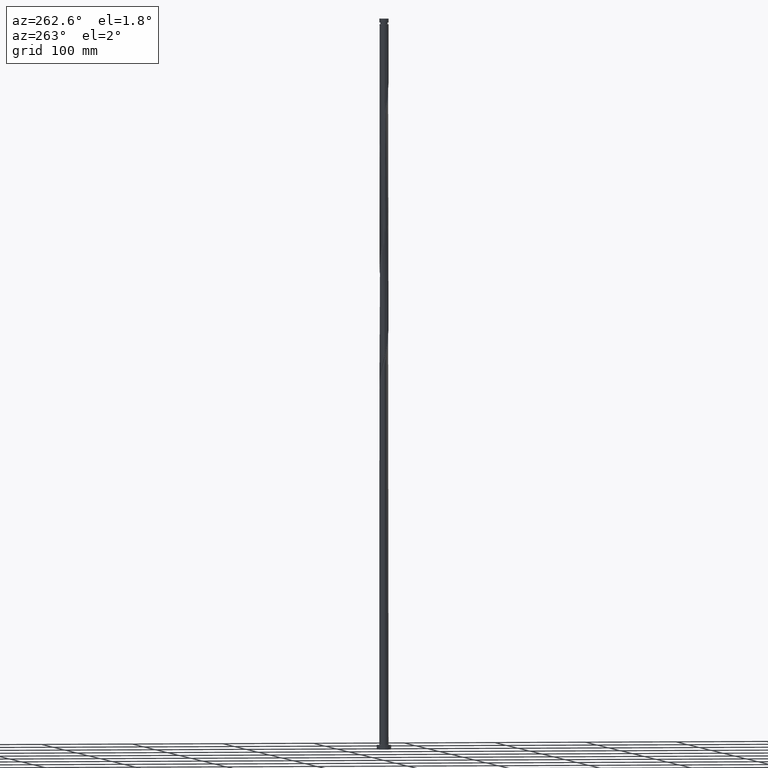
[diagram: clean part render]
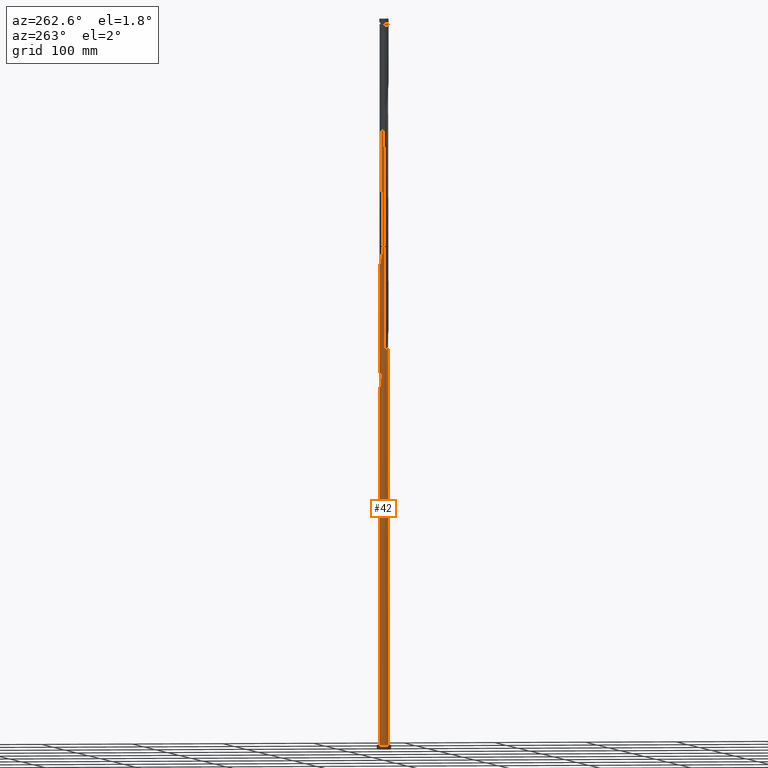
[diagram: same view with one face highlighted and labeled with its STEP entity id]
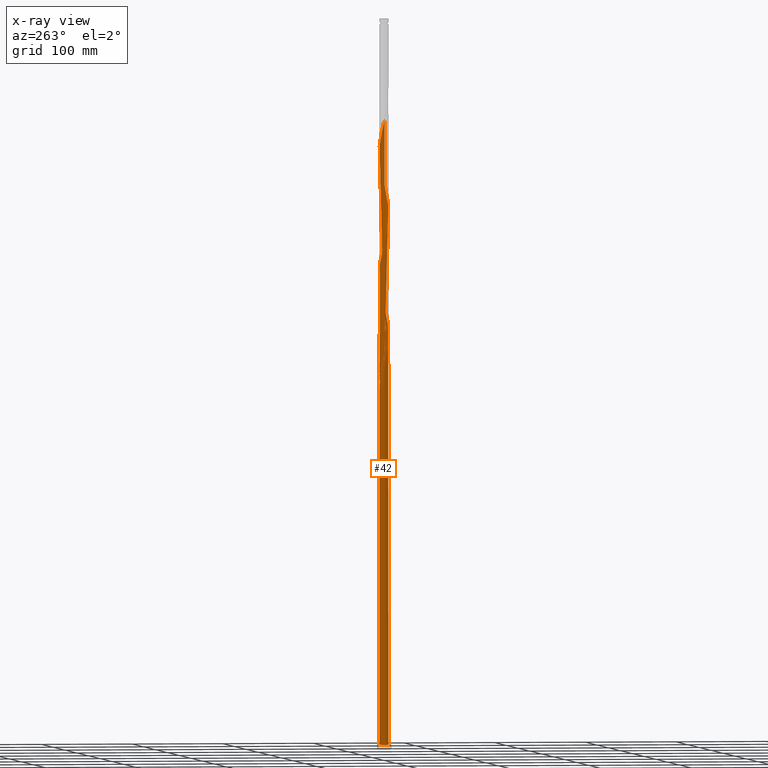
[diagram: x-ray of the same camera — body ghosted, the highlighted face saturated]
A machine part, auxiliary view. The second image highlights one B-rep face of the part: STEP entity #42.
The next image is the same camera in x-ray: the body ghosted, the highlighted face saturated — about 0% of this face is hidden behind the body in this view.
In plain terms, the highlighted cylindrical surface (bore or boss wall) has radius 5 mm, axis along (-0, -0, -1).
Its self-contained STEP definition (entity closure, byte-faithful):
#2 = CARTESIAN_POINT ( 'NONE',  ( -4.064598413571491875, 2.941206217551776803, 676.3177705055865090 ) ) ;
#15 = CARTESIAN_POINT ( 'NONE',  ( 4.493269221328096030, -2.232081087783042150, 613.1598757687444277 ) ) ;
#20 = DIRECTION ( 'NONE',  ( -0.000000000000000000, -0.000000000000000000, -1.000000000000000000 ) ) ;
#42 = ADVANCED_FACE ( 'NONE', ( #226 ), #822, .T. ) ;
#46 = CARTESIAN_POINT ( 'NONE',  ( -1.457076892166166537, -4.782983057707340890, 450.0019810319022326 ) ) ;
#58 = CARTESIAN_POINT ( 'NONE',  ( -3.266812383747513149, 3.807832864920276172, 413.1598757687442003 ) ) ;
#59 = CARTESIAN_POINT ( 'NONE',  ( -4.965429427042146848, -0.5869502577424865475, 425.4405775231303437 ) ) ;
#71 = CARTESIAN_POINT ( 'NONE',  ( -4.087607399536869579, -2.879490536058679329, 435.9668933126040429 ) ) ;
#82 = VERTEX_POINT ( 'NONE', #686 ) ;
#112 = CARTESIAN_POINT ( 'NONE',  ( -4.505806327405627698, -2.167419973127375776, 565.7914547161127530 ) ) ;
#121 = CARTESIAN_POINT ( 'NONE',  ( -4.087607399536869579, -2.879490536058679329, 569.3002266459375278 ) ) ;
#131 = CARTESIAN_POINT ( 'NONE',  ( 4.685403866801941319, 1.794058216092929703, 497.3704020845339073 ) ) ;
#133 = CARTESIAN_POINT ( 'NONE',  ( 0.9949874371066294021, 4.899999999999997691, 393.8616301547091894 ) ) ;
#144 = CARTESIAN_POINT ( 'NONE',  ( 3.557909197405970669, 3.513016103437909265, 506.1423319090952191 ) ) ;
#145 = CARTESIAN_POINT ( 'NONE',  ( -3.525055956709932659, 3.570102908858082458, 406.1423319090952759 ) ) ;
#152 = CARTESIAN_POINT ( 'NONE',  ( 4.916793342044518234, 0.9983974706497554807, 493.8616301547093599 ) ) ;
#162 = CARTESIAN_POINT ( 'NONE',  ( -0.1749036129582282328, 4.996939936218388389, 657.0195248915514412 ) ) ;
#163 = CARTESIAN_POINT ( 'NONE',  ( -4.916793342044511128, 0.9983974706497559248, 427.1949634880425606 ) ) ;
#174 = CARTESIAN_POINT ( 'NONE',  ( -4.994316278799820985, 0.2383378008524587588, 688.5984722599723682 ) ) ;
#175 = CARTESIAN_POINT ( 'NONE',  ( -4.326208788009311412, 2.540781730161816743, 420.1774196283934089 ) ) ;
#186 = CARTESIAN_POINT ( 'NONE',  ( 4.974567045559865619, -0.6521786465401347987, 620.1774196283931815 ) ) ;
#196 = CARTESIAN_POINT ( 'NONE',  ( 0.6499511258119766710, 4.957576377026966519, 653.5107529617268938 ) ) ;
#200 = LINE ( 'NONE', #367, #1232 ) ;
#226 = FACE_OUTER_BOUND ( 'NONE', #1926, .T. ) ;
#249 = CARTESIAN_POINT ( 'NONE',  ( 0.1749036129582310639, -4.996939936218388389, 457.0195248915513844 ) ) ;
#284 = CARTESIAN_POINT ( 'NONE',  ( 3.266812383747518922, 3.807832864920280169, 507.8967178740074360 ) ) ;
#294 = CARTESIAN_POINT ( 'NONE',  ( -3.207207559597160973, 3.835859704116263202, 537.7212792775163734 ) ) ;
#304 = CARTESIAN_POINT ( 'NONE',  ( -2.224457399218039200, -4.477922428879735683, 579.8265424354110564 ) ) ;
#313 = CARTESIAN_POINT ( 'NONE',  ( -0.2391546351814093085, -5.011432862789283682, 588.5984722599723682 ) ) ;
#321 = CARTESIAN_POINT ( 'NONE',  ( 1.060747616442545560, 4.903719891264649355, 518.4230336634813057 ) ) ;
#330 = CARTESIAN_POINT ( 'NONE',  ( -3.525055956709932659, 3.570102908858082458, 672.8089985757618479 ) ) ;
#339 = VECTOR ( 'NONE', #565, 1000.000000000000000 ) ;
#341 = CARTESIAN_POINT ( 'NONE',  ( -4.493269221328096918, 2.232081087783041262, 679.8265424354108291 ) ) ;
#343 = CARTESIAN_POINT ( 'NONE',  ( -4.685403866801933326, 1.794058216092931701, 423.6861915582181268 ) ) ;
#353 = CARTESIAN_POINT ( 'NONE',  ( -3.207207559597160973, 3.835859704116263202, 671.0546126108497447 ) ) ;
#364 = CARTESIAN_POINT ( 'NONE',  ( 0.000000000000000000, 0.000000000000000000, 5.000000000000000000 ) ) ;
#366 = CARTESIAN_POINT ( 'NONE',  ( -3.557909197405964008, 3.513016103437906157, 414.9142617336564740 ) ) ;
#367 = CARTESIAN_POINT ( 'NONE',  ( -5.000000000000000000, 0.000000000000000000, 800.0000000000000000 ) ) ;
#375 = CARTESIAN_POINT ( 'NONE',  ( 1.401013013115385064, -4.817552990352517384, 595.6160161196215768 ) ) ;
#387 = CARTESIAN_POINT ( 'NONE',  ( -1.853406167889788181, -4.662246224150030649, 448.2475950669899589 ) ) ;
#405 =( BOUNDED_CURVE ( )  B_SPLINE_CURVE ( 2, ( #2233, #1214, #1591, #163, #1196, #343, #1028, #175, #1915, #856, #366, #58, #410, #1794, #1447, #2156, #2110, #1603, #1274, #1109, #556, #937, #1288 ),
 .UNSPECIFIED., .F., .T. ) 
 B_SPLINE_CURVE_WITH_KNOTS ( ( 3, 2, 2, 2, 2, 2, 2, 2, 2, 2, 2, 3 ),
 ( 0.9295295809515958796, 0.9342105263157894912, 0.9407894736842105088, 0.9473684210526315264, 0.9539473684210526550, 0.9605263157894736725, 0.9671052631578946901, 0.9736842105263158187, 0.9802631578947368363, 0.9868421052631578538, 0.9934210526315789824, 1.000000000000000000 ),
 .UNSPECIFIED. ) 
 CURVE ( )  GEOMETRIC_REPRESENTATION_ITEM ( )  RATIONAL_B_SPLINE_CURVE ( ( 0.9078162034606489517, 0.9068816855934562771, 0.9090909090909780055, 0.9059859027334048465, 0.9090909090909780055, 0.9059859027334048465, 0.9090909090909780055, 0.9059859027334048465, 0.9090909090909780055, 0.9059859027334048465, 0.9090909090909780055, 0.9059859027334048465, 0.9090909090909780055, 0.9059859027334048465, 0.9090909090909780055, 0.9059859027334048465, 0.9090909090909780055, 0.9059859027334048465, 0.9090909090909780055, 0.9059859027334048465, 0.9090909090909780055, 0.9059859027334048465, 0.9090909090909780055 ) ) 
 REPRESENTATION_ITEM ( '' )  );
#410 = CARTESIAN_POINT ( 'NONE',  ( -2.931160507146898020, 4.050715749264855781, 411.4054898038320403 ) ) ;
#412 = CARTESIAN_POINT ( 'NONE',  ( -3.266812383747517590, -3.807832864920281057, 441.2300512073408072 ) ) ;
#420 = ORIENTED_EDGE ( 'NONE', *, *, #2078, .F. ) ;
#433 = CARTESIAN_POINT ( 'NONE',  ( -4.685403866801940431, -1.794058216092932145, 430.7037354178671080 ) ) ;
#443 = CARTESIAN_POINT ( 'NONE',  ( -4.965429427042146848, -0.5869502577424865475, 558.7739108564638855 ) ) ;
#446 = EDGE_CURVE ( 'NONE', #82, #1263, #405, .T. ) ;
#456 = CARTESIAN_POINT ( 'NONE',  ( 4.493269221328096030, -2.232081087783042150, 479.8265424354109427 ) ) ;
#465 = CARTESIAN_POINT ( 'NONE',  ( -4.974567045559865619, 0.6521786465401341326, 553.5107529617267801 ) ) ;
#477 = CARTESIAN_POINT ( 'NONE',  ( 2.224457399218039644, 4.477922428879734795, 513.1598757687444277 ) ) ;
#478 = CARTESIAN_POINT ( 'NONE',  ( 0.000000000000000000, 0.000000000000000000, 800.0000000000000000 ) ) ;
#479 = CARTESIAN_POINT ( 'NONE',  ( -5.000000000000008882, 0.1192366712258332434, 422.4367082688136747 ) ) ;
#486 = CARTESIAN_POINT ( 'NONE',  ( -4.064598413571491875, 2.941206217551776803, 542.9844371722531378 ) ) ;
#495 = CARTESIAN_POINT ( 'NONE',  ( 0.2391546351814078653, 5.011432862789283682, 655.2651389266391107 ) ) ;
#506 = CARTESIAN_POINT ( 'NONE',  ( 2.931160507146906902, 4.050715749264860222, 642.9844371722531378 ) ) ;
#520 = CARTESIAN_POINT ( 'NONE',  ( -2.174848182303464661, 4.521248683904087073, 665.7914547161129803 ) ) ;
#528 = AXIS2_PLACEMENT_3D ( 'NONE', #1389, #2112, #1237 ) ;
#530 = CARTESIAN_POINT ( 'NONE',  ( 4.064598413571491875, -2.941206217551778135, 609.6511038389197665 ) ) ;
#542 = CARTESIAN_POINT ( 'NONE',  ( 2.174848182303464217, -4.521248683904087962, 599.1247880494462379 ) ) ;
#556 = CARTESIAN_POINT ( 'NONE',  ( 0.1749036129582320631, 4.996939936218380396, 397.3704020845336231 ) ) ;
#558 = CARTESIAN_POINT ( 'NONE',  ( -2.224457399218039200, -4.477922428879735683, 446.4932091020777420 ) ) ;
#565 = DIRECTION ( 'NONE',  ( -0.000000000000000000, -0.000000000000000000, -1.000000000000000000 ) ) ;
#568 = CIRCLE ( 'NONE', #1836, 5.000000000000000000 ) ;
#570 = CARTESIAN_POINT ( 'NONE',  ( 1.787930597709425529, -4.669400837128304005, 464.0370687512004793 ) ) ;
#617 = CARTESIAN_POINT ( 'NONE',  ( 4.974567045559865619, -0.6521786465401347987, 486.8440862950601513 ) ) ;
#628 = CARTESIAN_POINT ( 'NONE',  ( 5.014065512039775463, 0.1755030448352140060, 490.3528582248846419 ) ) ;
#630 = CARTESIAN_POINT ( 'NONE',  ( -2.532103672393926530, 4.311432591639264622, 400.8791740143583411 ) ) ;
#636 = CARTESIAN_POINT ( 'NONE',  ( -3.266812383747517590, -3.807832864920281057, 574.5633845406740647 ) ) ;
#638 = CARTESIAN_POINT ( 'NONE',  ( -4.064598413571491875, 2.941206217551776803, 409.6511038389197097 ) ) ;
#646 = CARTESIAN_POINT ( 'NONE',  ( -3.794827185140713599, 3.255654563204930074, 541.2300512073409209 ) ) ;
#648 = CARTESIAN_POINT ( 'NONE',  ( -4.278933817449796173, 2.586643652667409921, 411.4054898038320971 ) ) ;
#655 = CARTESIAN_POINT ( 'NONE',  ( 4.646322289566819030, -1.847075846161879698, 481.5809284003232733 ) ) ;
#662 = CARTESIAN_POINT ( 'NONE',  ( 4.886971201682704269, -1.057124625540427409, 618.4230336634811920 ) ) ;
#664 = CARTESIAN_POINT ( 'NONE',  ( -4.646322289566819030, 1.847075846161879698, 414.9142617336565877 ) ) ;
#675 = CARTESIAN_POINT ( 'NONE',  ( 1.853406167889788625, 4.662246224150031537, 648.2475950669900158 ) ) ;
#676 = ORIENTED_EDGE ( 'NONE', *, *, #1380, .F. ) ;
#685 = CARTESIAN_POINT ( 'NONE',  ( -0.5889618610978689661, 4.982447009647494873, 658.7739108564635444 ) ) ;
#686 = CARTESIAN_POINT ( 'NONE',  ( -5.000000000000000000, 3.911322689939121366E-15, 431.4468956888313187 ) ) ;
#696 = CARTESIAN_POINT ( 'NONE',  ( 0.9949874371066286249, -4.900000000000006573, 593.8616301547092462 ) ) ;
#698 = CARTESIAN_POINT ( 'NONE',  ( 5.000000000000000000, 0.000000000000000000, 5.000000000000000000 ) ) ;
#706 = CARTESIAN_POINT ( 'NONE',  ( 4.087607399536869579, 2.879490536058681105, 635.9668933126040429 ) ) ;
#708 = VERTEX_POINT ( 'NONE', #1859 ) ;
#718 = LINE ( 'NONE', #767, #339 ) ;
#734 = CARTESIAN_POINT ( 'NONE',  ( 2.532103672393926530, -4.311432591639265510, 467.5458406810251404 ) ) ;
#747 = CARTESIAN_POINT ( 'NONE',  ( -3.849006011064423305, -3.218199341955540138, 437.7212792775162598 ) ) ;
#757 = CARTESIAN_POINT ( 'NONE',  ( 0.5889618610978697433, -4.982447009647494873, 458.7739108564636012 ) ) ;
#767 = CARTESIAN_POINT ( 'NONE',  ( -5.000000000000000000, 0.000000000000000000, 800.0000000000000000 ) ) ;
#772 = CARTESIAN_POINT ( 'NONE',  ( -5.000000000000004441, -0.2944932087671758847, 424.1935584014389633 ) ) ;
#787 = CARTESIAN_POINT ( 'NONE',  ( -4.801098604423230221, -1.396227843371344424, 428.9493494529548911 ) ) ;
#799 = CARTESIAN_POINT ( 'NONE',  ( -0.5889618610978689661, 4.982447009647494873, 525.4405775231302869 ) ) ;
#810 = CARTESIAN_POINT ( 'NONE',  ( -3.849006011064423305, -3.218199341955540138, 571.0546126108495173 ) ) ;
#821 = CARTESIAN_POINT ( 'NONE',  ( 4.994316278799820985, -0.2383378008524581759, 488.5984722599724250 ) ) ;
#822 = CYLINDRICAL_SURFACE ( 'NONE', #1972, 5.000000000000000000 ) ;
#833 = CARTESIAN_POINT ( 'NONE',  ( 0.2391546351814078653, 5.011432862789283682, 521.9318055933057394 ) ) ;
#839 = CARTESIAN_POINT ( 'NONE',  ( 4.801098604423230221, 1.396227843371344868, 628.9493494529548343 ) ) ;
#842 = CARTESIAN_POINT ( 'NONE',  ( -2.889359162484387511, 4.101616499374441283, 402.6335599792706716 ) ) ;
#847 = CARTESIAN_POINT ( 'NONE',  ( -3.794827185140713599, 3.255654563204930074, 674.5633845406741784 ) ) ;
#848 = EDGE_CURVE ( 'NONE', #1311, #1897, #718, .T. ) ;
#855 = CARTESIAN_POINT ( 'NONE',  ( -5.000000000000008882, 0.1192366712258247780, 689.1033749354804741 ) ) ;
#856 = CARTESIAN_POINT ( 'NONE',  ( -3.849006011064417088, 3.218199341955536585, 416.6686476985688046 ) ) ;
#864 = CARTESIAN_POINT ( 'NONE',  ( 4.685403866801941319, 1.794058216092929703, 630.7037354178670512 ) ) ;
#874 = CARTESIAN_POINT ( 'NONE',  ( -2.532103672393926530, 4.311432591639264622, 667.5458406810254246 ) ) ;
#898 = CARTESIAN_POINT ( 'NONE',  ( -4.326208788009316741, -2.540781730161819407, 434.2125073476916555 ) ) ;
#911 = CARTESIAN_POINT ( 'NONE',  ( -3.557909197405970669, -3.513016103437910154, 439.4756652424285903 ) ) ;
#926 = CARTESIAN_POINT ( 'NONE',  ( -5.000000000000007105, -2.597595984921387031E-15, 422.9430312872536888 ) ) ;
#937 = CARTESIAN_POINT ( 'NONE',  ( 0.5889618610978712976, 4.982447009647488656, 395.6160161196214631 ) ) ;
#951 =( BOUNDED_CURVE ( )  B_SPLINE_CURVE ( 2, ( #2022, #2222, #2030, #1841, #630, #842, #1315, #145, #1703, #638, #648, #1136, #664, #2049, #1175, #1006, #2213, #479, #1664 ),
 .UNSPECIFIED., .F., .T. ) 
 B_SPLINE_CURVE_WITH_KNOTS ( ( 3, 2, 2, 2, 2, 2, 2, 2, 2, 3 ),
 ( 0.000000000000000000, 0.006578947368421017572, 0.01315789473684214617, 0.01973684210526316374, 0.02631578947368418131, 0.03289473684210530990, 0.03947368421052632748, 0.04605263157894734505, 0.05263157894736847364, 0.05452958095159560203 ),
 .UNSPECIFIED. ) 
 CURVE ( )  GEOMETRIC_REPRESENTATION_ITEM ( )  RATIONAL_B_SPLINE_CURVE ( ( 0.9090909090909827794, 0.9059859027334098425, 0.9090909090909827794, 0.9059859027334098425, 0.9090909090909827794, 0.9059859027334098425, 0.9090909090909827794, 0.9059859027334098425, 0.9090909090909827794, 0.9059859027334098425, 0.9090909090909827794, 0.9059859027334098425, 0.9090909090909827794, 0.9059859027334098425, 0.9090909090909827794, 0.9059859027334098425, 0.9090909090909827794, 0.9081951262309313488, 0.9078162034606538366 ) ) 
 REPRESENTATION_ITEM ( '' )  );
#961 = CARTESIAN_POINT ( 'NONE',  ( -1.401013013115386618, 4.817552990352517384, 528.9493494529549480 ) ) ;
#970 = CARTESIAN_POINT ( 'NONE',  ( -4.278933817449796173, 2.586643652667409921, 544.7388231371655820 ) ) ;
#978 = CARTESIAN_POINT ( 'NONE',  ( -4.326208788009316741, -2.540781730161819407, 567.5458406810250835 ) ) ;
#992 = CARTESIAN_POINT ( 'NONE',  ( 0.1749036129582310639, -4.996939936218388389, 590.3528582248846988 ) ) ;
#1003 = CARTESIAN_POINT ( 'NONE',  ( -4.799375357805542031, 1.462070604540717023, 550.0019810319022326 ) ) ;
#1006 = CARTESIAN_POINT ( 'NONE',  ( -4.974567045559865619, 0.6521786465401341326, 420.1774196283934657 ) ) ;
#1016 = CARTESIAN_POINT ( 'NONE',  ( 2.532103672393926530, -4.311432591639265510, 600.8791740143584548 ) ) ;
#1026 = CARTESIAN_POINT ( 'NONE',  ( -4.799375357805542031, 1.462070604540717023, 683.3353143652354902 ) ) ;
#1028 = CARTESIAN_POINT ( 'NONE',  ( -4.505806327405622369, 2.167419973127374888, 421.9318055933056826 ) ) ;
#1040 = CARTESIAN_POINT ( 'NONE',  ( -4.886971201682705157, 1.057124625540425411, 685.0897003301480481 ) ) ;
#1048 = CARTESIAN_POINT ( 'NONE',  ( 5.014065512039775463, 0.1755030448352140060, 623.6861915582180700 ) ) ;
#1060 = CARTESIAN_POINT ( 'NONE',  ( 4.799375357805542031, -1.462070604540719909, 616.6686476985688614 ) ) ;
#1075 = CARTESIAN_POINT ( 'NONE',  ( -0.2391546351814093085, -5.011432862789283682, 455.2651389266391107 ) ) ;
#1085 = ORIENTED_EDGE ( 'NONE', *, *, #848, .T. ) ;
#1097 = CARTESIAN_POINT ( 'NONE',  ( -2.595508630546288664, -4.293598633609439830, 444.7388231371654115 ) ) ;
#1109 = CARTESIAN_POINT ( 'NONE',  ( -0.2391546351814064497, 5.011432862789276577, 399.1247880494460105 ) ) ;
#1113 = ORIENTED_EDGE ( 'NONE', *, *, #1793, .T. ) ;
#1133 = CARTESIAN_POINT ( 'NONE',  ( -4.801098604423230221, -1.396227843371344424, 562.2826827862880918 ) ) ;
#1136 = CARTESIAN_POINT ( 'NONE',  ( -4.493269221328096918, 2.232081087783041262, 413.1598757687443140 ) ) ;
#1143 = CARTESIAN_POINT ( 'NONE',  ( 2.595508630546290885, 4.293598633609438942, 511.4054898038321539 ) ) ;
#1153 = CARTESIAN_POINT ( 'NONE',  ( -3.557909197405970669, -3.513016103437910154, 572.8089985757618479 ) ) ;
#1163 = CARTESIAN_POINT ( 'NONE',  ( -2.889359162484387511, 4.101616499374441283, 535.9668933126040429 ) ) ;
#1171 = CARTESIAN_POINT ( 'NONE',  ( 4.087607399536869579, 2.879490536058681105, 502.6335599792707285 ) ) ;
#1175 = CARTESIAN_POINT ( 'NONE',  ( -4.886971201682705157, 1.057124625540425411, 418.4230336634812488 ) ) ;
#1184 = CARTESIAN_POINT ( 'NONE',  ( 3.525055956709932659, -3.570102908858084234, 606.1423319090953328 ) ) ;
#1194 = CARTESIAN_POINT ( 'NONE',  ( 1.060747616442545560, 4.903719891264649355, 651.7563669968145632 ) ) ;
#1196 = CARTESIAN_POINT ( 'NONE',  ( -4.801098604423221339, 1.396227843371343535, 425.4405775231302869 ) ) ;
#1213 = CARTESIAN_POINT ( 'NONE',  ( 2.595508630546290885, 4.293598633609438942, 644.7388231371653546 ) ) ;
#1214 = CARTESIAN_POINT ( 'NONE',  ( -4.999999999999998224, 0.2944932087671943144, 430.1963685746461010 ) ) ;
#1223 = CARTESIAN_POINT ( 'NONE',  ( 4.326208788009316741, 2.540781730161818963, 634.2125073476917123 ) ) ;
#1232 = VECTOR ( 'NONE', #20, 1000.000000000000000 ) ;
#1237 = DIRECTION ( 'NONE',  ( 1.000000000000000000, 0.000000000000000000, 0.000000000000000000 ) ) ;
#1251 = CARTESIAN_POINT ( 'NONE',  ( 3.525055956709932659, -3.570102908858084234, 472.8089985757619047 ) ) ;
#1258 = ORIENTED_EDGE ( 'NONE', *, *, #446, .F. ) ;
#1263 = VERTEX_POINT ( 'NONE', #133 ) ;
#1268 = EDGE_CURVE ( 'NONE', #708, #1311, #951, .T. ) ;
#1274 = CARTESIAN_POINT ( 'NONE',  ( -0.6499511258119736734, 4.957576377026959413, 400.8791740143582842 ) ) ;
#1277 = CARTESIAN_POINT ( 'NONE',  ( 4.064598413571491875, -2.941206217551778135, 476.3177705055865658 ) ) ;
#1288 = CARTESIAN_POINT ( 'NONE',  ( 0.9949874371066294021, 4.899999999999997691, 393.8616301547091894 ) ) ;
#1300 = CARTESIAN_POINT ( 'NONE',  ( -0.1749036129582282328, 4.996939936218388389, 523.6861915582181837 ) ) ;
#1311 = VERTEX_POINT ( 'NONE', #1355 ) ;
#1313 = CARTESIAN_POINT ( 'NONE',  ( 1.457076892166168980, 4.782983057707340890, 516.6686476985689751 ) ) ;
#1315 = CARTESIAN_POINT ( 'NONE',  ( -3.207207559597160973, 3.835859704116263202, 404.3879459441830591 ) ) ;
#1326 = CARTESIAN_POINT ( 'NONE',  ( -0.9949874371066279588, 4.900000000000006573, 527.1949634880428448 ) ) ;
#1334 = CARTESIAN_POINT ( 'NONE',  ( -1.457076892166166537, -4.782983057707340890, 583.3353143652358312 ) ) ;
#1335 = DIRECTION ( 'NONE',  ( -1.000000000000000000, 0.000000000000000000, 0.000000000000000000 ) ) ;
#1344 = CARTESIAN_POINT ( 'NONE',  ( 3.849006011064424637, 3.218199341955537474, 504.3879459441828885 ) ) ;
#1353 = CARTESIAN_POINT ( 'NONE',  ( 4.646322289566819030, -1.847075846161879698, 614.9142617336568719 ) ) ;
#1354 = AXIS2_PLACEMENT_3D ( 'NONE', #1649, #1615, #1627 ) ;
#1355 = CARTESIAN_POINT ( 'NONE',  ( -5.000000000000007105, -2.597595984921387031E-15, 422.9430312872537456 ) ) ;
#1362 = CARTESIAN_POINT ( 'NONE',  ( 3.266812383747518922, 3.807832864920280169, 641.2300512073409209 ) ) ;
#1373 = CARTESIAN_POINT ( 'NONE',  ( -1.787930597709425973, 4.669400837128302229, 664.0370687512006498 ) ) ;
#1380 = EDGE_CURVE ( 'NONE', #1621, #82, #200, .T. ) ;
#1386 = CARTESIAN_POINT ( 'NONE',  ( 0.5889618610978697433, -4.982447009647494873, 592.1072441897970293 ) ) ;
#1389 = CARTESIAN_POINT ( 'NONE',  ( 0.000000000000000000, 0.000000000000000000, 5.000000000000000000 ) ) ;
#1398 = CARTESIAN_POINT ( 'NONE',  ( 3.207207559597160973, -3.835859704116263202, 604.3879459441828885 ) ) ;
#1424 = CARTESIAN_POINT ( 'NONE',  ( 2.889359162484385735, -4.101616499374442171, 469.3002266459373004 ) ) ;
#1447 = CARTESIAN_POINT ( 'NONE',  ( -2.224457399218035203, 4.477922428879730354, 407.8967178740073791 ) ) ;
#1449 = CARTESIAN_POINT ( 'NONE',  ( 1.401013013115385064, -4.817552990352517384, 462.2826827862882055 ) ) ;
#1478 = CARTESIAN_POINT ( 'NONE',  ( -3.525055956709932659, 3.570102908858082458, 539.4756652424285903 ) ) ;
#1487 = ORIENTED_EDGE ( 'NONE', *, *, #848, .F. ) ;
#1490 = CARTESIAN_POINT ( 'NONE',  ( -2.595508630546288664, -4.293598633609439830, 578.0721564704987259 ) ) ;
#1500 = CARTESIAN_POINT ( 'NONE',  ( -2.174848182303464661, 4.521248683904087073, 532.4581213827794954 ) ) ;
#1510 = CARTESIAN_POINT ( 'NONE',  ( 4.801098604423230221, 1.396227843371344868, 495.6160161196215768 ) ) ;
#1512 = DIRECTION ( 'NONE',  ( -0.000000000000000000, -0.000000000000000000, -1.000000000000000000 ) ) ;
#1522 = CARTESIAN_POINT ( 'NONE',  ( -1.787930597709425973, 4.669400837128302229, 530.7037354178673922 ) ) ;
#1532 = CARTESIAN_POINT ( 'NONE',  ( 4.965429427042146848, 0.5869502577424847711, 625.4405775231304006 ) ) ;
#1541 = CARTESIAN_POINT ( 'NONE',  ( -4.278933817449796173, 2.586643652667409921, 678.0721564704989532 ) ) ;
#1553 = DIRECTION ( 'NONE',  ( 0.000000000000000000, 0.000000000000000000, 1.000000000000000000 ) ) ;
#1563 = CARTESIAN_POINT ( 'NONE',  ( -0.9949874371066279588, 4.900000000000006573, 660.5282968213759887 ) ) ;
#1574 = CARTESIAN_POINT ( 'NONE',  ( -4.646322289566819030, 1.847075846161879698, 681.5809284003233870 ) ) ;
#1591 = CARTESIAN_POINT ( 'NONE',  ( -4.965429427042139743, 0.5869502577424867695, 428.9493494529548911 ) ) ;
#1603 = CARTESIAN_POINT ( 'NONE',  ( -1.060747616442540675, 4.903719891264643138, 402.6335599792706148 ) ) ;
#1605 = CARTESIAN_POINT ( 'NONE',  ( 2.174848182303464217, -4.521248683904087962, 465.7914547161126961 ) ) ;
#1615 = DIRECTION ( 'NONE',  ( -1.848892746611746419E-29, -2.775557561562893244E-14, -1.000000000000000000 ) ) ;
#1621 = VERTEX_POINT ( 'NONE', #1878 ) ;
#1627 = DIRECTION ( 'NONE',  ( 0.000000000000000000, 1.000000000000000000, -3.330669073875469621E-14 ) ) ;
#1649 = CARTESIAN_POINT ( 'NONE',  ( 0.000000000000000000, 0.000000000000000000, 393.8616301547093030 ) ) ;
#1661 = CARTESIAN_POINT ( 'NONE',  ( -4.685403866801940431, -1.794058216092932145, 564.0370687512003087 ) ) ;
#1664 = CARTESIAN_POINT ( 'NONE',  ( -5.000000000000007105, -2.597595984921387031E-15, 422.9430312872536888 ) ) ;
#1671 = CARTESIAN_POINT ( 'NONE',  ( -4.916793342044518234, -0.9983974706497563689, 560.5282968213759887 ) ) ;
#1678 = ORIENTED_EDGE ( 'NONE', *, *, #2150, .T. ) ;
#1680 = CARTESIAN_POINT ( 'NONE',  ( -1.853406167889788181, -4.662246224150030649, 581.5809284003235007 ) ) ;
#1691 = CARTESIAN_POINT ( 'NONE',  ( 4.965429427042146848, 0.5869502577424847711, 492.1072441897969725 ) ) ;
#1701 = CARTESIAN_POINT ( 'NONE',  ( 4.886971201682704269, -1.057124625540427409, 485.0897003301478208 ) ) ;
#1703 = CARTESIAN_POINT ( 'NONE',  ( -3.794827185140713599, 3.255654563204930074, 407.8967178740074360 ) ) ;
#1709 = CARTESIAN_POINT ( 'NONE',  ( 4.505806327405629474, 2.167419973127374444, 632.4581213827792681 ) ) ;
#1717 = CARTESIAN_POINT ( 'NONE',  ( -4.974567045559865619, 0.6521786465401341326, 686.8440862950603787 ) ) ;
#1728 = CARTESIAN_POINT ( 'NONE',  ( 4.916793342044518234, 0.9983974706497554807, 627.1949634880425037 ) ) ;
#1743 = CARTESIAN_POINT ( 'NONE',  ( 3.849006011064424637, 3.218199341955537474, 637.7212792775162598 ) ) ;
#1756 = CARTESIAN_POINT ( 'NONE',  ( 1.787930597709425529, -4.669400837128304005, 597.3704020845340210 ) ) ;
#1769 = CARTESIAN_POINT ( 'NONE',  ( 0.9949874371066286249, -4.900000000000006573, 460.5282968213759887 ) ) ;
#1777 = VERTEX_POINT ( 'NONE', #698 ) ;
#1793 = EDGE_CURVE ( 'NONE', #1897, #1777, #2166, .T. ) ;
#1794 = CARTESIAN_POINT ( 'NONE',  ( -2.595508630546284223, 4.293598633609434501, 409.6511038389197097 ) ) ;
#1796 = CARTESIAN_POINT ( 'NONE',  ( -0.6499511258119760049, -4.957576377026965631, 453.5107529617268369 ) ) ;
#1829 = CARTESIAN_POINT ( 'NONE',  ( -2.532103672393926530, 4.311432591639264622, 534.2125073476917123 ) ) ;
#1836 = AXIS2_PLACEMENT_3D ( 'NONE', #364, #1553, #2241 ) ;
#1839 = CARTESIAN_POINT ( 'NONE',  ( 0.6499511258119766710, 4.957576377026966519, 520.1774196283937499 ) ) ;
#1841 = CARTESIAN_POINT ( 'NONE',  ( -2.174848182303464661, 4.521248683904087073, 399.1247880494461810 ) ) ;
#1848 = CARTESIAN_POINT ( 'NONE',  ( -2.931160507146903793, -4.050715749264860222, 576.3177705055863953 ) ) ;
#1857 = CARTESIAN_POINT ( 'NONE',  ( -0.6499511258119760049, -4.957576377026965631, 586.8440862950603787 ) ) ;
#1859 = CARTESIAN_POINT ( 'NONE',  ( -0.9949874371066277368, 4.900000000000006573, 393.8616301547091894 ) ) ;
#1868 = CARTESIAN_POINT ( 'NONE',  ( 1.853406167889788625, 4.662246224150031537, 514.9142617336566445 ) ) ;
#1876 = CARTESIAN_POINT ( 'NONE',  ( 3.557909197405970669, 3.513016103437909265, 639.4756652424285903 ) ) ;
#1878 = CARTESIAN_POINT ( 'NONE',  ( -5.000000000000007105, -5.822197897237592132E-16, 689.6096979539203176 ) ) ;
#1886 = CARTESIAN_POINT ( 'NONE',  ( -2.889359162484387511, 4.101616499374441283, 669.3002266459374141 ) ) ;
#1897 = VERTEX_POINT ( 'NONE', #2158 ) ;
#1913 = CARTESIAN_POINT ( 'NONE',  ( -5.000000000000007105, -5.822197897237592132E-16, 689.6096979539203176 ) ) ;
#1915 = CARTESIAN_POINT ( 'NONE',  ( -4.087607399536863362, 2.879490536058676664, 418.4230336634811351 ) ) ;
#1924 = CARTESIAN_POINT ( 'NONE',  ( 2.224457399218039644, 4.477922428879734795, 646.4932091020777989 ) ) ;
#1926 = EDGE_LOOP ( 'NONE', ( #676, #420, #1085, #1113, #1678, #1487, #2232, #2171, #1258 ) ) ;
#1940 = CARTESIAN_POINT ( 'NONE',  ( -4.505806327405627698, -2.167419973127375776, 432.4581213827794386 ) ) ;
#1963 = CARTESIAN_POINT ( 'NONE',  ( -1.060747616442544672, -4.903719891264648467, 451.7563669968144495 ) ) ;
#1972 = AXIS2_PLACEMENT_3D ( 'NONE', #478, #1512, #1335 ) ;
#1976 = CARTESIAN_POINT ( 'NONE',  ( 4.278933817449794397, -2.586643652667411253, 478.0721564704987259 ) ) ;
#1989 = CARTESIAN_POINT ( 'NONE',  ( -4.916793342044518234, -0.9983974706497563689, 427.1949634880426743 ) ) ;
#2000 = CARTESIAN_POINT ( 'NONE',  ( 4.799375357805542031, -1.462070604540719909, 483.3353143652354902 ) ) ;
#2011 = CARTESIAN_POINT ( 'NONE',  ( 2.931160507146906902, 4.050715749264860222, 509.6511038389198802 ) ) ;
#2020 = CARTESIAN_POINT ( 'NONE',  ( -5.014065512039773687, -0.1755030448352166150, 557.0195248915511002 ) ) ;
#2022 = CARTESIAN_POINT ( 'NONE',  ( -0.9949874371066277368, 4.900000000000006573, 393.8616301547091894 ) ) ;
#2027 = CARTESIAN_POINT ( 'NONE',  ( -1.060747616442544672, -4.903719891264648467, 585.0897003301480481 ) ) ;
#2030 = CARTESIAN_POINT ( 'NONE',  ( -1.787930597709425973, 4.669400837128302229, 397.3704020845339642 ) ) ;
#2037 = CARTESIAN_POINT ( 'NONE',  ( 4.326208788009316741, 2.540781730161818963, 500.8791740143583411 ) ) ;
#2045 = CARTESIAN_POINT ( 'NONE',  ( 1.457076892166168980, 4.782983057707340890, 650.0019810319024600 ) ) ;
#2046 = EDGE_CURVE ( 'NONE', #708, #1263, #2200, .T. ) ;
#2049 = CARTESIAN_POINT ( 'NONE',  ( -4.799375357805542031, 1.462070604540717023, 416.6686476985689751 ) ) ;
#2059 = CARTESIAN_POINT ( 'NONE',  ( 4.278933817449794397, -2.586643652667411253, 611.4054898038320971 ) ) ;
#2078 = EDGE_CURVE ( 'NONE', #1311, #1621, #2100, .T. ) ;
#2084 = CARTESIAN_POINT ( 'NONE',  ( 2.889359162484385735, -4.101616499374442171, 602.6335599792705580 ) ) ;
#2095 = CARTESIAN_POINT ( 'NONE',  ( -1.401013013115386618, 4.817552990352517384, 662.2826827862883192 ) ) ;
#2100 =( BOUNDED_CURVE ( )  B_SPLINE_CURVE ( 2, ( #926, #772, #59, #1989, #787, #433, #1940, #898, #71, #747, #911, #412, #2135, #1097, #558, #387, #46, #1963, #1796, #1075, #249, #757, #1769, #1449, #570, #1605, #734, #1424, #2123, #1251, #2144, #1277, #1976, #456, #655, #2000, #1701, #617, #821, #628, #1691, #152, #1510, #131, #2202, #2037, #1171, #1344, #144, #284, #2011, #1143, #477, #1868, #1313, #321, #1839, #833, #1300, #799, #1326, #961, #1522, #1500, #1829, #1163, #294, #1478, #646, #486, #970, #2212, #2173, #1003, #2182, #465, #2193, #2020, #443, #1671, #1133, #1661, #112, #978, #121, #810, #1153, #636, #1848, #1490, #304, #1680, #1334, #2027, #1857, #313, #992, #1386, #696, #375, #1756, #542, #1016, #2084, #1398, #1184, #2220, #530, #2059, #15, #1353, #1060, #662, #186, #2231, #1048, #1532, #1728, #839, #864, #1709, #1223, #706, #1743, #1876, #1362, #506, #1213, #1924, #675, #2045, #1194, #196, #495, #162, #685, #1563, #2095, #1373, #520, #874, #1886, #353, #330, #847, #2, #1541, #341, #1574, #1026, #1040, #1717, #174, #855, #1913 ),
 .UNSPECIFIED., .F., .T. ) 
 B_SPLINE_CURVE_WITH_KNOTS ( ( 3, 2, 2, 2, 2, 2, 2, 2, 2, 2, 2, 2, 2, 2, 2, 2, 2, 2, 2, 2, 2, 2, 2, 2, 2, 2, 2, 2, 2, 2, 2, 2, 2, 2, 2, 2, 2, 2, 2, 2, 2, 2, 2, 2, 2, 2, 2, 2, 2, 2, 2, 2, 2, 2, 2, 2, 2, 2, 2, 2, 2, 2, 2, 2, 2, 2, 2, 2, 2, 2, 2, 2, 2, 2, 2, 2, 2, 3 ),
 ( 0.05452958095159560203, 0.05921052631578949121, 0.06578947368421050879, 0.07236842105263152636, 0.07894736842105265495, 0.08552631578947367252, 0.09210526315789469010, 0.09868421052631581869, 0.1052631578947368363, 0.1118421052631578538, 0.1184210526315789686, 0.1249999999999999861, 0.1315789473684210176, 0.1381578947368421462, 0.1447368421052631637, 0.1513157894736841813, 0.1578947368421053099, 0.1644736842105263275, 0.1710526315789473450, 0.1776315789473684736, 0.1842105263157894635, 0.1907894736842104810, 0.1973684210526314986, 0.2039473684210526272, 0.2105263157894736448, 0.2171052631578946623, 0.2236842105263157909, 0.2302631578947368085, 0.2368421052631578261, 0.2434210526315789547, 0.2499999999999999722, 0.2565789473684210176, 0.2631578947368421462, 0.2697368421052631637, 0.2763157894736841813, 0.2828947368421053099, 0.2894736842105263275, 0.2960526315789473450, 0.3026315789473684736, 0.3092105263157894357, 0.3157894736842104533, 0.3223684210526314708, 0.3289473684210525994, 0.3355263157894736170, 0.3421052631578946346, 0.3486842105263157632, 0.3552631578947367808, 0.3618421052631577983, 0.3684210526315789269, 0.3749999999999999445, 0.3815789473684209621, 0.3881578947368420907, 0.3947368421052631082, 0.4013157894736841258, 0.4078947368421052544, 0.4144736842105262720, 0.4210526315789472895, 0.4276315789473684181, 0.4342105263157894357, 0.4407894736842104533, 0.4473684210526314708, 0.4539473684210525994, 0.4605263157894736170, 0.4671052631578946346, 0.4736842105263157632, 0.4802631578947367808, 0.4868421052631577983, 0.4934210526315789269, 0.4999999999999999445, 0.5065789473684210176, 0.5131578947368420351, 0.5197368421052630527, 0.5263157894736842923, 0.5328947368421053099, 0.5394736842105263275, 0.5460526315789473450, 0.5526315789473683626, 0.5545295809515955465 ),
 .UNSPECIFIED. ) 
 CURVE ( )  GEOMETRIC_REPRESENTATION_ITEM ( )  RATIONAL_B_SPLINE_CURVE ( ( 0.9078162034606538366, 0.9068816855934611620, 0.9090909090909827794, 0.9059859027334098425, 0.9090909090909827794, 0.9059859027334098425, 0.9090909090909827794, 0.9059859027334098425, 0.9090909090909827794, 0.9059859027334098425, 0.9090909090909827794, 0.9059859027334098425, 0.9090909090909827794, 0.9059859027334098425, 0.9090909090909827794, 0.9059859027334098425, 0.9090909090909827794, 0.9059859027334098425, 0.9090909090909827794, 0.9059859027334098425, 0.9090909090909827794, 0.9059859027334098425, 0.9090909090909827794, 0.9059859027334098425, 0.9090909090909827794, 0.9059859027334098425, 0.9090909090909827794, 0.9059859027334098425, 0.9090909090909827794, 0.9059859027334098425, 0.9090909090909827794, 0.9059859027334098425, 0.9090909090909827794, 0.9059859027334098425, 0.9090909090909827794, 0.9059859027334098425, 0.9090909090909827794, 0.9059859027334098425, 0.9090909090909827794, 0.9059859027334098425, 0.9090909090909827794, 0.9059859027334098425, 0.9090909090909827794, 0.9059859027334098425, 0.9090909090909827794, 0.9059859027334098425, 0.9090909090909827794, 0.9059859027334098425, 0.9090909090909827794, 0.9059859027334098425, 0.9090909090909827794, 0.9059859027334098425, 0.9090909090909827794, 0.9059859027334098425, 0.9090909090909827794, 0.9059859027334098425, 0.9090909090909827794, 0.9059859027334098425, 0.9090909090909827794, 0.9059859027334098425, 0.9090909090909827794, 0.9059859027334098425, 0.9090909090909827794, 0.9059859027334098425, 0.9090909090909827794, 0.9059859027334098425, 0.9090909090909827794, 0.9059859027334098425, 0.9090909090909827794, 0.9059859027334098425, 0.9090909090909827794, 0.9059859027334098425, 0.9090909090909827794, 0.9059859027334098425, 0.9090909090909827794, 0.9059859027334098425, 0.9090909090909827794, 0.9059859027334098425, 0.9090909090909827794, 0.9059859027334098425, 0.9090909090909827794, 0.9059859027334098425, 0.9090909090909827794, 0.9059859027334098425, 0.9090909090909827794, 0.9059859027334098425, 0.9090909090909827794, 0.9059859027334098425, 0.9090909090909827794, 0.9059859027334098425, 0.9090909090909827794, 0.9059859027334098425, 0.9090909090909827794, 0.9059859027334098425, 0.9090909090909827794, 0.9059859027334098425, 0.9090909090909827794, 0.9059859027334098425, 0.9090909090909827794, 0.9059859027334098425, 0.9090909090909827794, 0.9059859027334098425, 0.9090909090909827794, 0.9059859027334098425, 0.9090909090909827794, 0.9059859027334098425, 0.9090909090909827794, 0.9059859027334098425, 0.9090909090909827794, 0.9059859027334098425, 0.9090909090909827794, 0.9059859027334098425, 0.9090909090909827794, 0.9059859027334098425, 0.9090909090909827794, 0.9059859027334098425, 0.9090909090909827794, 0.9059859027334098425, 0.9090909090909827794, 0.9059859027334098425, 0.9090909090909827794, 0.9059859027334098425, 0.9090909090909827794, 0.9059859027334098425, 0.9090909090909827794, 0.9059859027334098425, 0.9090909090909827794, 0.9059859027334098425, 0.9090909090909827794, 0.9059859027334098425, 0.9090909090909827794, 0.9059859027334098425, 0.9090909090909827794, 0.9059859027334098425, 0.9090909090909827794, 0.9059859027334098425, 0.9090909090909827794, 0.9059859027334098425, 0.9090909090909827794, 0.9059859027334098425, 0.9090909090909827794, 0.9059859027334098425, 0.9090909090909827794, 0.9059859027334098425, 0.9090909090909827794, 0.9059859027334098425, 0.9090909090909827794, 0.9059859027334098425, 0.9090909090909827794, 0.9059859027334098425, 0.9090909090909827794, 0.9059859027334098425, 0.9090909090909827794, 0.9081951262309313488, 0.9078162034606538366 ) ) 
 REPRESENTATION_ITEM ( '' )  );
#2110 = CARTESIAN_POINT ( 'NONE',  ( -1.457076892166162319, 4.782983057707333785, 404.3879459441828885 ) ) ;
#2112 = DIRECTION ( 'NONE',  ( 0.000000000000000000, 0.000000000000000000, 1.000000000000000000 ) ) ;
#2123 = CARTESIAN_POINT ( 'NONE',  ( 3.207207559597160973, -3.835859704116263202, 471.0546126108495741 ) ) ;
#2135 = CARTESIAN_POINT ( 'NONE',  ( -2.931160507146903793, -4.050715749264860222, 442.9844371722531378 ) ) ;
#2144 = CARTESIAN_POINT ( 'NONE',  ( 3.794827185140713599, -3.255654563204931407, 474.5633845406741784 ) ) ;
#2150 = EDGE_CURVE ( 'NONE', #1777, #1897, #568, .T. ) ;
#2156 = CARTESIAN_POINT ( 'NONE',  ( -1.853406167889784628, 4.662246224150025320, 406.1423319090951622 ) ) ;
#2158 = CARTESIAN_POINT ( 'NONE',  ( -5.000000000000000000, 0.000000000000000000, 5.000000000000000000 ) ) ;
#2166 = CIRCLE ( 'NONE', #528, 5.000000000000000000 ) ;
#2171 = ORIENTED_EDGE ( 'NONE', *, *, #2046, .T. ) ;
#2173 = CARTESIAN_POINT ( 'NONE',  ( -4.646322289566819030, 1.847075846161879698, 548.2475950669899021 ) ) ;
#2182 = CARTESIAN_POINT ( 'NONE',  ( -4.886971201682705157, 1.057124625540425411, 551.7563669968146769 ) ) ;
#2193 = CARTESIAN_POINT ( 'NONE',  ( -4.994316278799820985, 0.2383378008524587588, 555.2651389266392243 ) ) ;
#2200 = CIRCLE ( 'NONE', #1354, 5.000000000000000000 ) ;
#2202 = CARTESIAN_POINT ( 'NONE',  ( 4.505806327405629474, 2.167419973127374444, 499.1247880494460674 ) ) ;
#2212 = CARTESIAN_POINT ( 'NONE',  ( -4.493269221328096918, 2.232081087783041262, 546.4932091020776852 ) ) ;
#2213 = CARTESIAN_POINT ( 'NONE',  ( -4.994316278799820985, 0.2383378008524587588, 421.9318055933057394 ) ) ;
#2220 = CARTESIAN_POINT ( 'NONE',  ( 3.794827185140713599, -3.255654563204931407, 607.8967178740075497 ) ) ;
#2222 = CARTESIAN_POINT ( 'NONE',  ( -1.401013013115386618, 4.817552990352517384, 395.6160161196215768 ) ) ;
#2231 = CARTESIAN_POINT ( 'NONE',  ( 4.994316278799820985, -0.2383378008524581759, 621.9318055933056257 ) ) ;
#2232 = ORIENTED_EDGE ( 'NONE', *, *, #1268, .F. ) ;
#2233 = CARTESIAN_POINT ( 'NONE',  ( -5.000000000000000000, 3.911322689939121366E-15, 431.4468956888313187 ) ) ;
#2241 = DIRECTION ( 'NONE',  ( 1.000000000000000000, 0.000000000000000000, 0.000000000000000000 ) ) ;